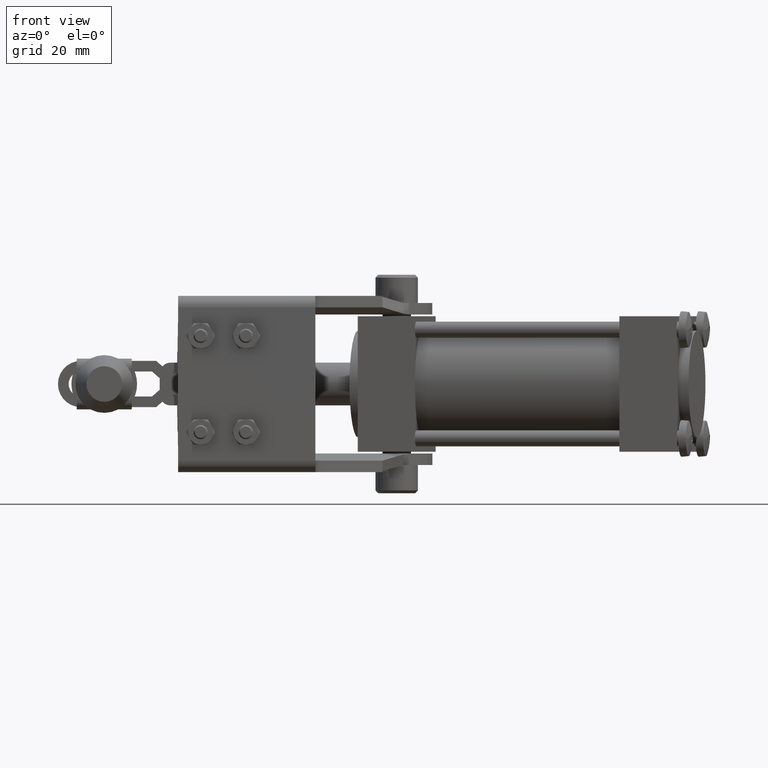
[diagram: clean part render]
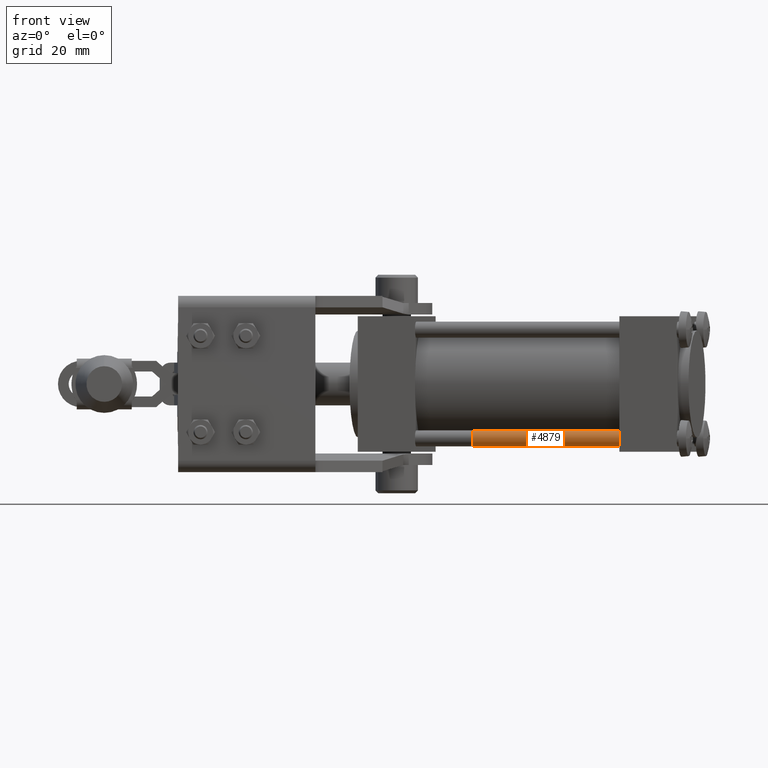
[diagram: same view with one face highlighted and labeled with its STEP entity id]
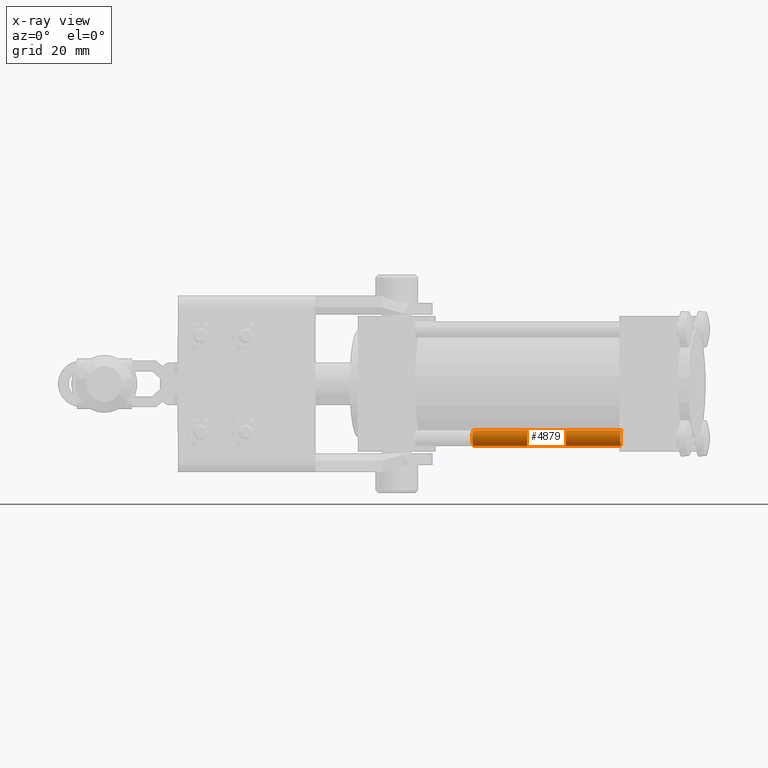
[diagram: x-ray of the same camera — body ghosted, the highlighted face saturated]
A machine part, front view. The second image highlights one B-rep face of the part: STEP entity #4879.
The next image is the same camera in x-ray: the body ghosted, the highlighted face saturated — about 0% of this face is hidden behind the body in this view.
In plain terms, the highlighted cylindrical surface (edge-blend (fillet) strip) has radius 2.25 mm, axis along (0.9874, -0.1585, -0).
Its self-contained STEP definition (entity closure, byte-faithful):
#504 = ORIENTED_EDGE ( 'NONE', *, *, #28185, .F. ) ;
#1345 = CIRCLE ( 'NONE', #26762, 2.250000000000000400 ) ;
#1612 = VERTEX_POINT ( 'NONE', #1646 ) ;
#1646 = CARTESIAN_POINT ( 'NONE',  ( 82.34358300136828700, 14.43128586827780200, -13.00000000000034800 ) ) ;
#2175 = DIRECTION ( 'NONE',  ( -0.1585460400361288800, -0.9873515853984647900, 0.0000000000000000000 ) ) ;
#2229 = DIRECTION ( 'NONE',  ( 0.9873515853984645700, -0.1585460400361313200, -1.306212789964704800E-016 ) ) ;
#2589 = DIRECTION ( 'NONE',  ( 0.0000000000000000000, -4.625929269271488500E-015, -1.000000000000000000 ) ) ;
#3068 = EDGE_CURVE ( 'NONE', #19553, #1612, #30203, .T. ) ;
#4449 = EDGE_CURVE ( 'NONE', #15729, #16256, #15904, .T. ) ;
#4592 = EDGE_LOOP ( 'NONE', ( #12632, #9938, #10432, #504 ) ) ;
#4879 = ADVANCED_FACE ( 'NONE', ( #19486 ), #13065, .T. ) ;
#5499 = CARTESIAN_POINT ( 'NONE',  ( 127.2680801369973100, 7.217441046633987300, -17.50000000000035200 ) ) ;
#9564 = CARTESIAN_POINT ( 'NONE',  ( 40.87513080003004300, 21.09016906670446500, -15.25000000000034100 ) ) ;
#9938 = ORIENTED_EDGE ( 'NONE', *, *, #29750, .T. ) ;
#10278 = CARTESIAN_POINT ( 'NONE',  ( 40.87513080003002800, 21.09016906670446900, -13.00000000000034100 ) ) ;
#10432 = ORIENTED_EDGE ( 'NONE', *, *, #4449, .T. ) ;
#12000 = DIRECTION ( 'NONE',  ( 0.0000000000000000000, 4.625929269271484500E-015, 1.000000000000000000 ) ) ;
#12632 = ORIENTED_EDGE ( 'NONE', *, *, #3068, .F. ) ;
#13065 = CYLINDRICAL_SURFACE ( 'NONE', #27560, 2.249999999999998700 ) ;
#13575 = DIRECTION ( 'NONE',  ( 0.9873515853984646800, -0.1585460400361313200, -1.306212789964704800E-016 ) ) ;
#15729 = VERTEX_POINT ( 'NONE', #25703 ) ;
#15904 = LINE ( 'NONE', #5499, #21513 ) ;
#16256 = VERTEX_POINT ( 'NONE', #26166 ) ;
#16568 = DIRECTION ( 'NONE',  ( 0.9873515853984645700, -0.1585460400361314000, -1.306212789964209000E-016 ) ) ;
#16721 = CARTESIAN_POINT ( 'NONE',  ( 127.2680801369973100, 7.217441046633998000, -15.25000000000035300 ) ) ;
#18137 = AXIS2_PLACEMENT_3D ( 'NONE', #30819, #16568, #2175 ) ;
#19486 = FACE_OUTER_BOUND ( 'NONE', #4592, .T. ) ;
#19553 = VERTEX_POINT ( 'NONE', #10278 ) ;
#21513 = VECTOR ( 'NONE', #2229, 1000.000000000000100 ) ;
#23874 = VECTOR ( 'NONE', #30609, 1000.000000000000100 ) ;
#25703 = CARTESIAN_POINT ( 'NONE',  ( 40.87513080003002800, 21.09016906670445100, -17.50000000000034100 ) ) ;
#26166 = CARTESIAN_POINT ( 'NONE',  ( 82.34358300136828700, 14.43128586827778100, -17.50000000000034500 ) ) ;
#26331 = DIRECTION ( 'NONE',  ( 0.9873515853984646800, -0.1585460400361313200, -1.306212789964704800E-016 ) ) ;
#26762 = AXIS2_PLACEMENT_3D ( 'NONE', #9564, #26331, #12000 ) ;
#27037 = CIRCLE ( 'NONE', #18137, 2.250000000000000000 ) ;
#27560 = AXIS2_PLACEMENT_3D ( 'NONE', #16721, #13575, #2589 ) ;
#28185 = EDGE_CURVE ( 'NONE', #1612, #16256, #27037, .T. ) ;
#28909 = CARTESIAN_POINT ( 'NONE',  ( 127.2680801369973100, 7.217441046634007800, -13.00000000000035300 ) ) ;
#29750 = EDGE_CURVE ( 'NONE', #19553, #15729, #1345, .T. ) ;
#30203 = LINE ( 'NONE', #28909, #23874 ) ;
#30609 = DIRECTION ( 'NONE',  ( 0.9873515853984645700, -0.1585460400361313200, -1.306212789964704800E-016 ) ) ;
#30819 = CARTESIAN_POINT ( 'NONE',  ( 82.34358300136828700, 14.43128586827779200, -15.25000000000034800 ) ) ;